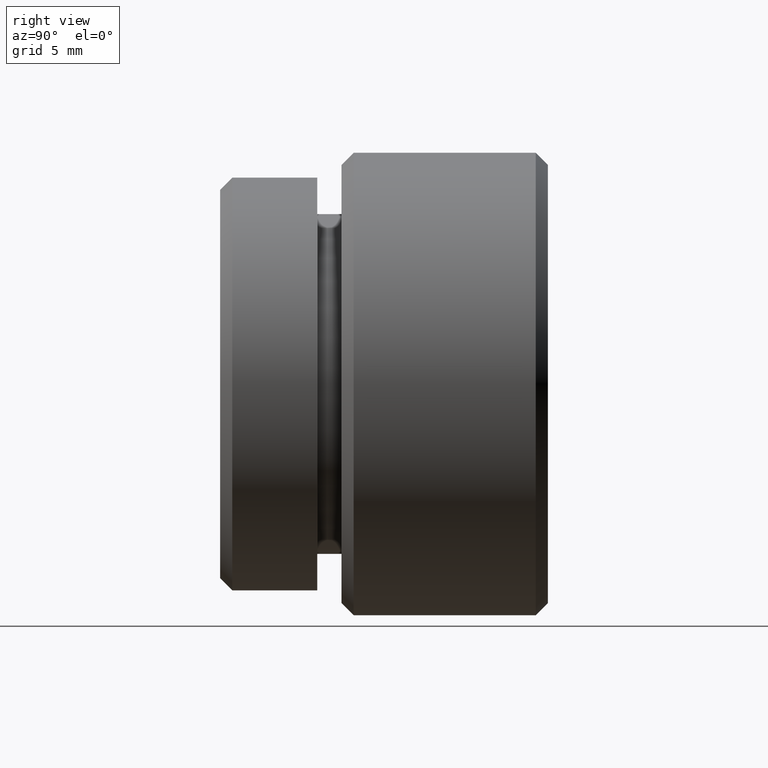
[diagram: clean part render]
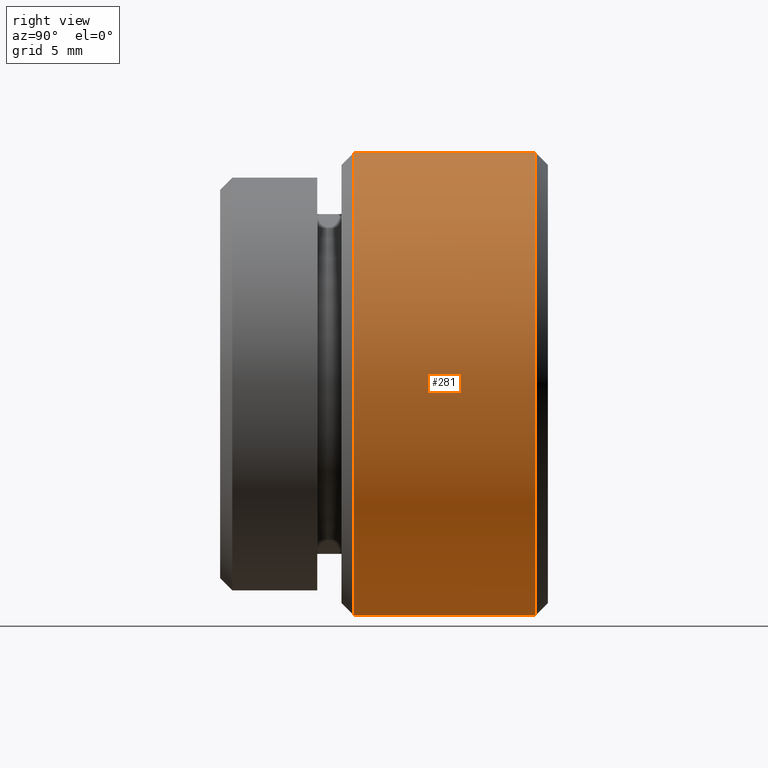
[diagram: same view with one face highlighted and labeled with its STEP entity id]
A machine part, right view. The second image highlights one B-rep face of the part: STEP entity #281.
In plain terms, the highlighted cylindrical surface (partial cylindrical patch) has radius 9.525 mm, axis along (-0, -1, -0).
Its self-contained STEP definition (entity closure, byte-faithful):
#89 = VECTOR ( 'NONE', #473, 1000.000000000000000 ) ;
#90 = LINE ( 'NONE', #519, #89 ) ;
#125 = ORIENTED_EDGE ( 'NONE', *, *, #259, .T. ) ;
#150 = CARTESIAN_POINT ( 'NONE',  ( 0.0000000000000000000, 5.499999999999999100, 9.525000000000000400 ) ) ;
#155 = CIRCLE ( 'NONE', #639, 9.525000000000000400 ) ;
#191 = VERTEX_POINT ( 'NONE', #865 ) ;
#207 = DIRECTION ( 'NONE',  ( 0.0000000000000000000, 0.0000000000000000000, -1.000000000000000000 ) ) ;
#224 = DIRECTION ( 'NONE',  ( -0.0000000000000000000, -1.000000000000000000, -0.0000000000000000000 ) ) ;
#259 = EDGE_CURVE ( 'NONE', #191, #1023, #759, .T. ) ;
#281 = ADVANCED_FACE ( 'NONE', ( #748 ), #688, .T. ) ;
#349 = EDGE_CURVE ( 'NONE', #757, #1023, #413, .T. ) ;
#413 = CIRCLE ( 'NONE', #938, 9.525000000000000400 ) ;
#416 = CARTESIAN_POINT ( 'NONE',  ( 0.0000000000000000000, 5.499999999999999100, 0.0000000000000000000 ) ) ;
#419 = DIRECTION ( 'NONE',  ( -0.0000000000000000000, -1.000000000000000000, -0.0000000000000000000 ) ) ;
#427 = DIRECTION ( 'NONE',  ( 0.0000000000000000000, 0.0000000000000000000, -1.000000000000000000 ) ) ;
#473 = DIRECTION ( 'NONE',  ( -0.0000000000000000000, -1.000000000000000000, -0.0000000000000000000 ) ) ;
#488 = CARTESIAN_POINT ( 'NONE',  ( 0.0000000000000000000, 13.00000000000000000, 0.0000000000000000000 ) ) ;
#519 = CARTESIAN_POINT ( 'NONE',  ( 0.0000000000000000000, 0.0000000000000000000, -9.525000000000000400 ) ) ;
#551 = DIRECTION ( 'NONE',  ( 0.0000000000000000000, 0.0000000000000000000, -1.000000000000000000 ) ) ;
#580 = CARTESIAN_POINT ( 'NONE',  ( 0.0000000000000000000, 0.0000000000000000000, 0.0000000000000000000 ) ) ;
#619 = ORIENTED_EDGE ( 'NONE', *, *, #843, .T. ) ;
#639 = AXIS2_PLACEMENT_3D ( 'NONE', #488, #224, #551 ) ;
#688 = CYLINDRICAL_SURFACE ( 'NONE', #971, 9.525000000000000400 ) ;
#720 = VERTEX_POINT ( 'NONE', #758 ) ;
#748 = FACE_OUTER_BOUND ( 'NONE', #957, .T. ) ;
#757 = VERTEX_POINT ( 'NONE', #780 ) ;
#758 = CARTESIAN_POINT ( 'NONE',  ( 0.0000000000000000000, 13.00000000000000000, -9.525000000000000400 ) ) ;
#759 = LINE ( 'NONE', #1112, #789 ) ;
#780 = CARTESIAN_POINT ( 'NONE',  ( 1.166476076187854000E-015, 5.499999999999999100, -9.525000000000000400 ) ) ;
#789 = VECTOR ( 'NONE', #990, 1000.000000000000000 ) ;
#843 = EDGE_CURVE ( 'NONE', #720, #191, #155, .T. ) ;
#865 = CARTESIAN_POINT ( 'NONE',  ( 1.166476076187854000E-015, 13.00000000000000000, 9.525000000000000400 ) ) ;
#872 = ORIENTED_EDGE ( 'NONE', *, *, #349, .F. ) ;
#938 = AXIS2_PLACEMENT_3D ( 'NONE', #416, #419, #427 ) ;
#942 = DIRECTION ( 'NONE',  ( -0.0000000000000000000, -1.000000000000000000, -0.0000000000000000000 ) ) ;
#957 = EDGE_LOOP ( 'NONE', ( #619, #125, #872, #993 ) ) ;
#971 = AXIS2_PLACEMENT_3D ( 'NONE', #580, #942, #207 ) ;
#973 = EDGE_CURVE ( 'NONE', #720, #757, #90, .T. ) ;
#990 = DIRECTION ( 'NONE',  ( -0.0000000000000000000, -1.000000000000000000, -0.0000000000000000000 ) ) ;
#993 = ORIENTED_EDGE ( 'NONE', *, *, #973, .F. ) ;
#1023 = VERTEX_POINT ( 'NONE', #150 ) ;
#1112 = CARTESIAN_POINT ( 'NONE',  ( 1.166476076187854000E-015, 0.0000000000000000000, 9.525000000000000400 ) ) ;